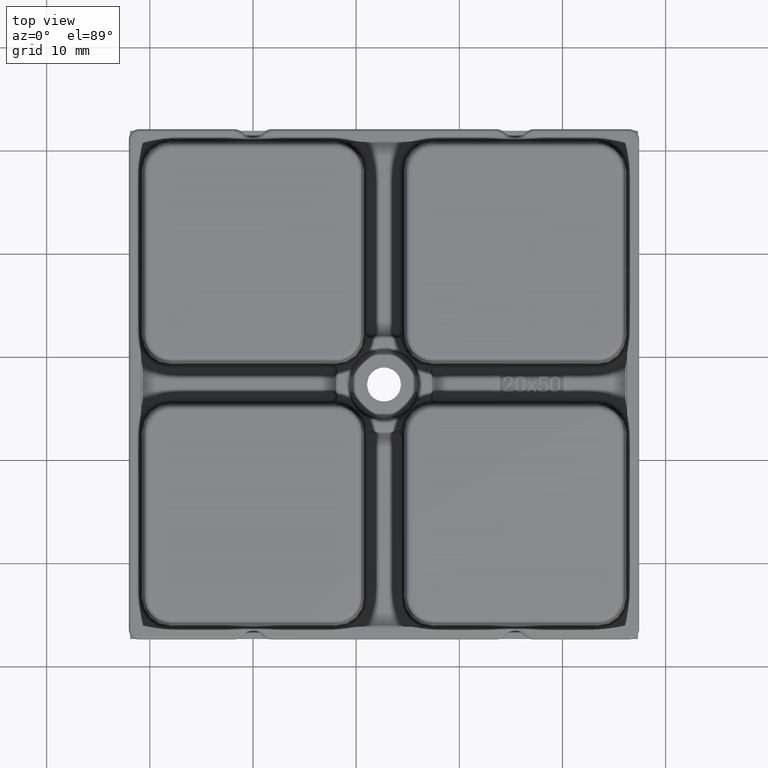
[diagram: clean part render]
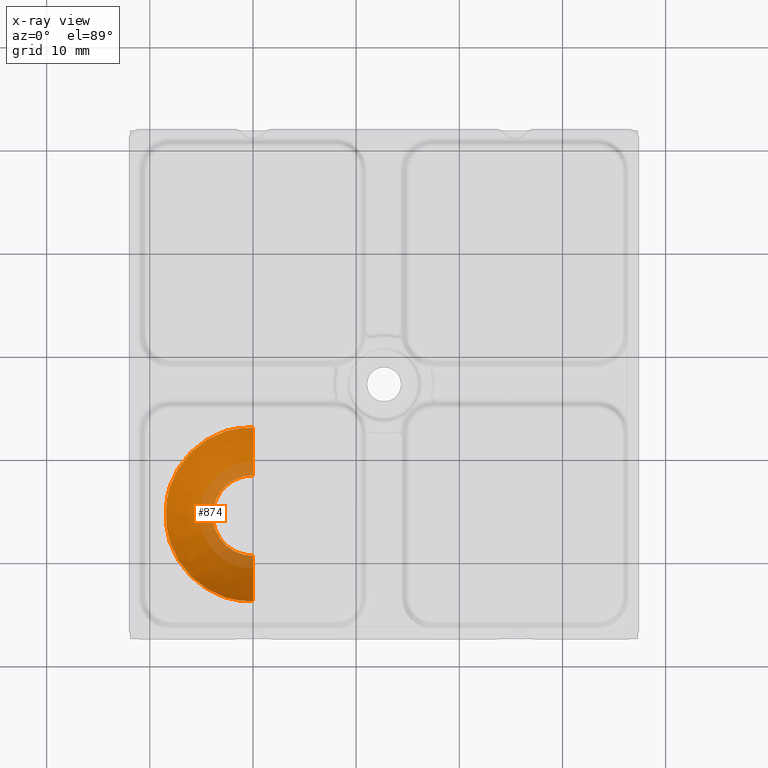
[diagram: x-ray — body ghosted, one internal face saturated and labeled with its STEP entity id]
A machine part, top view, then the same camera in x-ray: the body is ghosted and one INTERNAL B-rep face — a face not visible from any outside direction — is saturated and labeled: STEP entity #874.
In plain terms, the highlighted face is a freeform B-spline surface patch.
Its self-contained STEP definition (entity closure, byte-faithful):
#267=(
BOUNDED_SURFACE()
B_SPLINE_SURFACE(4,3,((#12477,#12478,#12479,#12480),(#12481,#12482,#12483,
#12484),(#12485,#12486,#12487,#12488),(#12489,#12490,#12491,#12492),(#12493,
#12494,#12495,#12496)),.UNSPECIFIED.,.F.,.F.,.F.)
B_SPLINE_SURFACE_WITH_KNOTS((5,5),(4,4),(0.,1.),(0.,1.),.UNSPECIFIED.)
GEOMETRIC_REPRESENTATION_ITEM()
RATIONAL_B_SPLINE_SURFACE(((1.,0.333333333333334,0.333333333333334,1.),
(1.,0.333333333333334,0.333333333333334,1.),(1.,0.333333333333334,0.333333333333334,
1.),(1.,0.333333333333334,0.333333333333334,1.),(1.,0.333333333333334,0.333333333333334,
1.)))
REPRESENTATION_ITEM('')
SURFACE()
);
#658=B_SPLINE_CURVE_WITH_KNOTS('',3,(#12442,#12443,#12444,#12445,#12446,
#12447),.UNSPECIFIED.,.F.,.F.,(4,2,4),(0.,0.5,1.),.UNSPECIFIED.);
#659=B_SPLINE_CURVE_WITH_KNOTS('',3,(#12448,#12449,#12450,#12451,#12452,
#12453,#12454),.UNSPECIFIED.,.F.,.F.,(4,3,4),(0.,0.373511749686127,1.),
 .UNSPECIFIED.);
#660=B_SPLINE_CURVE_WITH_KNOTS('',4,(#12456,#12457,#12458,#12459,#12460),
 .UNSPECIFIED.,.F.,.F.,(5,5),(0.,1.),.UNSPECIFIED.);
#661=B_SPLINE_CURVE_WITH_KNOTS('',4,(#12464,#12465,#12466,#12467,#12468),
 .UNSPECIFIED.,.F.,.F.,(5,5),(0.,1.),.UNSPECIFIED.);
#662=B_SPLINE_CURVE_WITH_KNOTS('',3,(#12470,#12471,#12472,#12473,#12474,
#12475,#12476),.UNSPECIFIED.,.F.,.F.,(4,3,4),(0.,0.37157335540718,1.),
 .UNSPECIFIED.);
#874=ADVANCED_FACE('',(#1484),#267,.F.);
#1484=FACE_OUTER_BOUND('',#1962,.T.);
#1962=EDGE_LOOP('',(#3408,#3409,#3410,#3411,#3412,#3413,#3414,#3415));
#2411=CIRCLE('',#7757,8.5);
#2414=CIRCLE('',#7762,8.5);
#2540=CIRCLE('',#7963,3.9);
#3408=ORIENTED_EDGE('',*,*,#5885,.T.);
#3409=ORIENTED_EDGE('',*,*,#6212,.T.);
#3410=ORIENTED_EDGE('',*,*,#5891,.T.);
#3411=ORIENTED_EDGE('',*,*,#6213,.T.);
#3412=ORIENTED_EDGE('',*,*,#6214,.T.);
#3413=ORIENTED_EDGE('',*,*,#6215,.F.);
#3414=ORIENTED_EDGE('',*,*,#6216,.T.);
#3415=ORIENTED_EDGE('',*,*,#6217,.T.);
#5207=VERTEX_POINT('',#11316);
#5208=VERTEX_POINT('',#11318);
#5213=VERTEX_POINT('',#11331);
#5214=VERTEX_POINT('',#11332);
#5472=VERTEX_POINT('',#12455);
#5473=VERTEX_POINT('',#12461);
#5474=VERTEX_POINT('',#12463);
#5475=VERTEX_POINT('',#12469);
#5885=EDGE_CURVE('',#5208,#5207,#2411,.T.);
#5891=EDGE_CURVE('',#5213,#5214,#2414,.T.);
#6212=EDGE_CURVE('',#5207,#5213,#658,.T.);
#6213=EDGE_CURVE('',#5214,#5472,#659,.T.);
#6214=EDGE_CURVE('',#5472,#5473,#660,.T.);
#6215=EDGE_CURVE('',#5474,#5473,#2540,.T.);
#6216=EDGE_CURVE('',#5474,#5475,#661,.T.);
#6217=EDGE_CURVE('',#5475,#5208,#662,.T.);
#7757=AXIS2_PLACEMENT_3D('',#11317,#8758,#8759);
#7762=AXIS2_PLACEMENT_3D('',#11330,#8771,#8772);
#7963=AXIS2_PLACEMENT_3D('',#12462,#9290,#9291);
#8758=DIRECTION('',(0.,0.,-1.));
#8759=DIRECTION('',(-1.,0.,0.));
#8771=DIRECTION('',(0.,0.,-1.));
#8772=DIRECTION('',(-1.,0.,0.));
#9290=DIRECTION('',(0.,0.,-1.));
#9291=DIRECTION('',(-1.,0.,0.));
#11316=CARTESIAN_POINT('',(-8.07461951795723,-28.0552814615826,6.811));
#11317=CARTESIAN_POINT('',(0.,-25.4,6.811));
#11318=CARTESIAN_POINT('',(-2.65528146158266,-33.4746195179572,6.811));
#11330=CARTESIAN_POINT('',(0.,-25.4,6.811));
#11331=CARTESIAN_POINT('',(-8.07461951795723,-22.7447185384174,6.811));
#11332=CARTESIAN_POINT('',(-2.65528146158266,-17.3253804820428,6.811));
#12442=CARTESIAN_POINT('',(-8.07461951795723,-28.0552814615826,6.811));
#12443=CARTESIAN_POINT('',(-8.35751119874012,-27.1950175987243,6.811));
#12444=CARTESIAN_POINT('',(-8.42516266765287,-26.2919485229042,6.66753823141697));
#12445=CARTESIAN_POINT('',(-8.42530709962389,-24.5101220362072,6.66739617046943));
#12446=CARTESIAN_POINT('',(-8.35778251279232,-23.6058074579686,6.811));
#12447=CARTESIAN_POINT('',(-8.07461951795723,-22.7447185384174,6.811));
#12448=CARTESIAN_POINT('',(-2.65528146158266,-17.3253804820428,6.811));
#12449=CARTESIAN_POINT('',(-2.33692247012013,-17.2206903816265,6.811));
#12450=CARTESIAN_POINT('',(-2.00775836841237,-17.1489344120632,6.78252440003061));
#12451=CARTESIAN_POINT('',(-1.67784324427472,-17.0965692235309,6.75557328752208));
#12452=CARTESIAN_POINT('',(-1.12506036287532,-17.0088297484838,6.71041587417728));
#12453=CARTESIAN_POINT('',(-0.561521434523872,-16.9747650744022,6.66746715967376));
#12454=CARTESIAN_POINT('',(-1.03179371854705E-15,-16.9747650744022,6.66746715967376));
#12455=CARTESIAN_POINT('',(-1.03179371854705E-15,-16.9747650744022,6.66746715967376));
#12456=CARTESIAN_POINT('',(-1.04094977927525E-15,-16.9,6.811));
#12457=CARTESIAN_POINT('',(-9.23935522201975E-16,-17.85549392,4.96374525464205));
#12458=CARTESIAN_POINT('',(-7.84864411254377E-16,-18.99109572,3.21418218364154));
#12459=CARTESIAN_POINT('',(-6.30843651521467E-16,-20.2487706662796,1.59672018894005));
#12460=CARTESIAN_POINT('',(-7.59281015471359E-16,-21.5,0.211));
#12461=CARTESIAN_POINT('',(-7.59281015471359E-16,-21.5,0.211));
#12462=CARTESIAN_POINT('',(0.,-25.4,0.211));
#12463=CARTESIAN_POINT('',(0.,-29.3,0.211));
#12464=CARTESIAN_POINT('',(0.,-29.3,0.211));
#12465=CARTESIAN_POINT('',(0.,-30.5512293337204,1.59672018894005));
#12466=CARTESIAN_POINT('',(0.,-31.80890428,3.21418218364154));
#12467=CARTESIAN_POINT('',(0.,-32.94450608,4.96374525464205));
#12468=CARTESIAN_POINT('',(0.,-33.9,6.811));
#12469=CARTESIAN_POINT('',(0.,-33.8252349255978,6.66746715967377));
#12470=CARTESIAN_POINT('',(0.,-33.8252349255978,6.66746715967377));
#12471=CARTESIAN_POINT('',(-0.333822631147163,-33.8252349255978,6.66746715967377));
#12472=CARTESIAN_POINT('',(-0.668084418318678,-33.8125467290065,6.68123613510247));
#12473=CARTESIAN_POINT('',(-1.,-33.7845885340383,6.70332538672599));
#12474=CARTESIAN_POINT('',(-1.55928412385098,-33.7374784390617,6.74054619955496));
#12475=CARTESIAN_POINT('',(-2.12093397857785,-33.6503359046564,6.811));
#12476=CARTESIAN_POINT('',(-2.65528146158261,-33.4746195179572,6.811));
#12477=CARTESIAN_POINT('',(0.,-33.9,6.811));
#12478=CARTESIAN_POINT('',(-17.,-33.9,6.811));
#12479=CARTESIAN_POINT('',(-17.,-16.9,6.811));
#12480=CARTESIAN_POINT('',(-1.04094977927525E-15,-16.9,6.811));
#12481=CARTESIAN_POINT('',(0.,-32.94450608,4.96374525464205));
#12482=CARTESIAN_POINT('',(-15.08901216,-32.94450608,4.96374525464204));
#12483=CARTESIAN_POINT('',(-15.08901216,-17.85549392,4.96374525464204));
#12484=CARTESIAN_POINT('',(-9.23935522201975E-16,-17.85549392,4.96374525464205));
#12485=CARTESIAN_POINT('',(0.,-31.80890428,3.21418218364154));
#12486=CARTESIAN_POINT('',(-12.81780856,-31.80890428,3.21418218364154));
#12487=CARTESIAN_POINT('',(-12.81780856,-18.99109572,3.21418218364154));
#12488=CARTESIAN_POINT('',(-7.84864411254377E-16,-18.99109572,3.21418218364154));
#12489=CARTESIAN_POINT('',(0.,-30.5512293337204,1.59672018894005));
#12490=CARTESIAN_POINT('',(-10.3024586674408,-30.5512293337204,1.59672018894005));
#12491=CARTESIAN_POINT('',(-10.3024586674408,-20.2487706662796,1.59672018894005));
#12492=CARTESIAN_POINT('',(-6.30843651521467E-16,-20.2487706662796,1.59672018894005));
#12493=CARTESIAN_POINT('',(0.,-29.3,0.211));
#12494=CARTESIAN_POINT('',(-7.8,-29.3,0.210999999999999));
#12495=CARTESIAN_POINT('',(-7.8,-21.5,0.210999999999999));
#12496=CARTESIAN_POINT('',(-4.77612251667468E-16,-21.5,0.211));